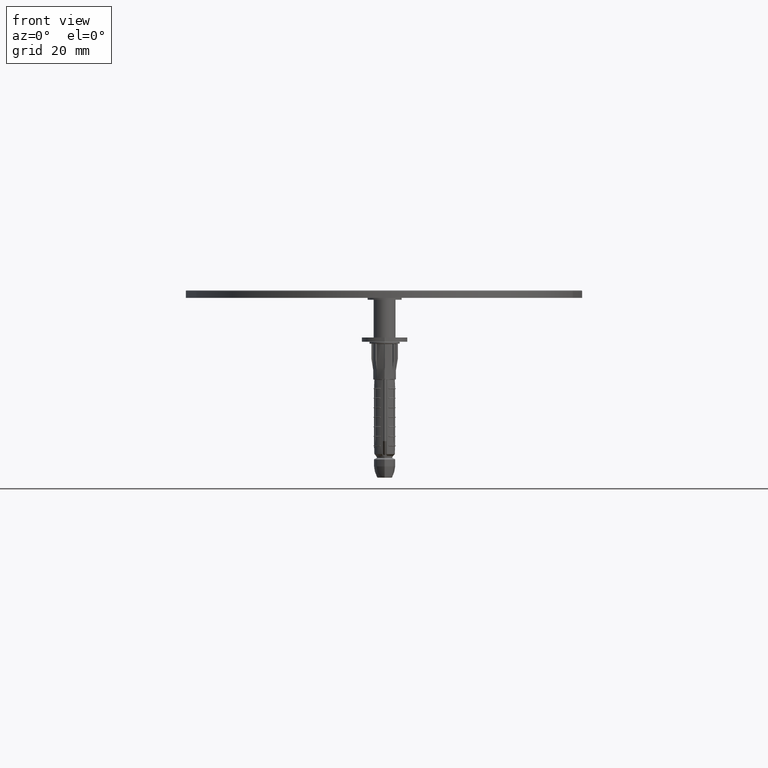
[diagram: clean part render]
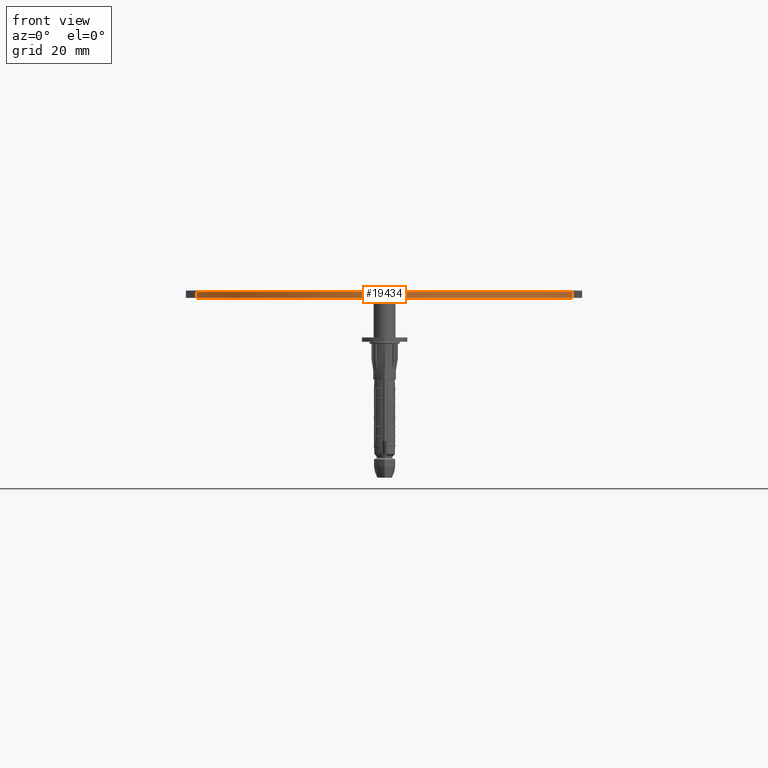
[diagram: same view with one face highlighted and labeled with its STEP entity id]
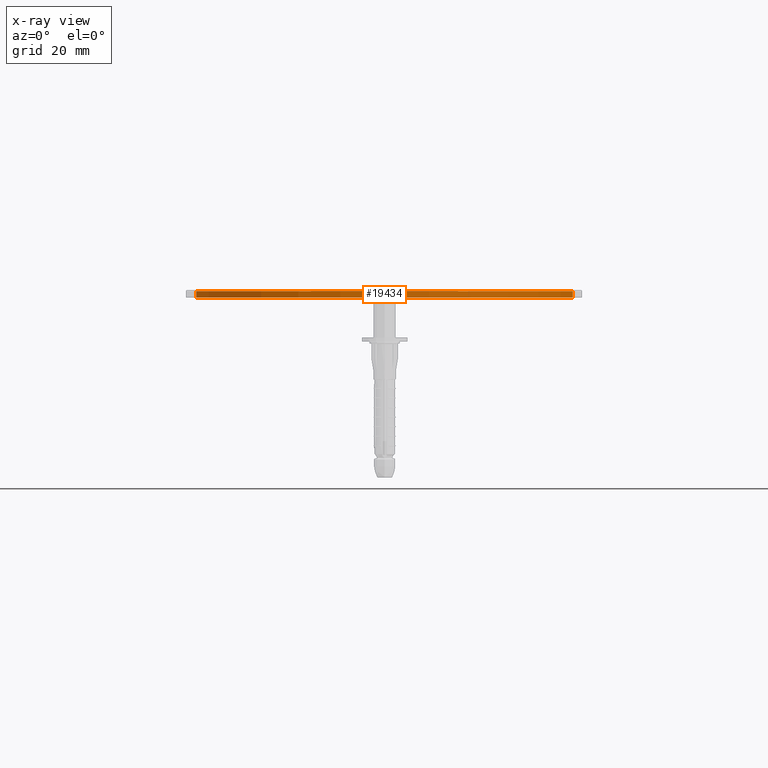
[diagram: x-ray of the same camera — body ghosted, the highlighted face saturated]
A machine part, front view. The second image highlights one B-rep face of the part: STEP entity #19434.
The next image is the same camera in x-ray: the body ghosted, the highlighted face saturated — about 0% of this face is hidden behind the body in this view.
In plain terms, the highlighted cylindrical surface (partial cylindrical patch) has radius 50.45 mm, axis along (-0, -0, -1).
Its self-contained STEP definition (entity closure, byte-faithful):
#492 = CARTESIAN_POINT ( 'NONE',  ( -49.80184873371896970, 42.38908425154004789, 0.000000000000000000 ) ) ;
#1042 = EDGE_CURVE ( 'NONE', #4603, #5539, #36365, .T. ) ;
#1712 = CARTESIAN_POINT ( 'NONE',  ( 49.80184873371896259, 42.38908425154003368, 1.750000000000000000 ) ) ;
#1813 = CYLINDRICAL_SURFACE ( 'NONE', #24695, 50.44999999999995310 ) ;
#2411 = VERTEX_POINT ( 'NONE', #492 ) ;
#2735 = LINE ( 'NONE', #16469, #23085 ) ;
#3567 = DIRECTION ( 'NONE',  ( -0.000000000000000000, -0.000000000000000000, -1.000000000000000000 ) ) ;
#4074 = DIRECTION ( 'NONE',  ( 0.000000000000000000, 0.000000000000000000, 1.000000000000000000 ) ) ;
#4603 = VERTEX_POINT ( 'NONE', #1712 ) ;
#4822 = ORIENTED_EDGE ( 'NONE', *, *, #32113, .T. ) ;
#4894 = CARTESIAN_POINT ( 'NONE',  ( 49.80184873371896259, 42.38908425154003368, 0.000000000000000000 ) ) ;
#5539 = VERTEX_POINT ( 'NONE', #36801 ) ;
#6171 = EDGE_CURVE ( 'NONE', #5539, #2411, #23358, .T. ) ;
#7563 = AXIS2_PLACEMENT_3D ( 'NONE', #18694, #3567, #24732 ) ;
#8250 = VECTOR ( 'NONE', #11596, 1000.000000000000000 ) ;
#9326 = DIRECTION ( 'NONE',  ( -0.000000000000000000, -0.000000000000000000, -1.000000000000000000 ) ) ;
#11596 = DIRECTION ( 'NONE',  ( -0.000000000000000000, -0.000000000000000000, -1.000000000000000000 ) ) ;
#12486 = DIRECTION ( 'NONE',  ( -1.000000000000000000, 0.000000000000000000, 0.000000000000000000 ) ) ;
#13012 = EDGE_CURVE ( 'NONE', #4603, #34583, #2735, .T. ) ;
#13104 = CARTESIAN_POINT ( 'NONE',  ( 0.000000000000000000, 50.45000000000000284, 0.000000000000000000 ) ) ;
#13626 = ORIENTED_EDGE ( 'NONE', *, *, #13012, .F. ) ;
#13982 = AXIS2_PLACEMENT_3D ( 'NONE', #13104, #4074, #34148 ) ;
#16469 = CARTESIAN_POINT ( 'NONE',  ( 49.80184873371896259, 42.38908425154003368, 2.000000000000000000 ) ) ;
#18199 = CARTESIAN_POINT ( 'NONE',  ( 0.000000000000000000, 50.45000000000000284, 2.000000000000000000 ) ) ;
#18694 = CARTESIAN_POINT ( 'NONE',  ( 0.000000000000000000, 50.45000000000000284, 1.750000000000000000 ) ) ;
#19434 = ADVANCED_FACE ( 'NONE', ( #26853 ), #1813, .T. ) ;
#23085 = VECTOR ( 'NONE', #28687, 1000.000000000000000 ) ;
#23358 = LINE ( 'NONE', #32779, #8250 ) ;
#24181 = ORIENTED_EDGE ( 'NONE', *, *, #6171, .T. ) ;
#24695 = AXIS2_PLACEMENT_3D ( 'NONE', #18199, #9326, #12486 ) ;
#24732 = DIRECTION ( 'NONE',  ( -1.000000000000000000, 0.000000000000000000, 0.000000000000000000 ) ) ;
#25705 = CIRCLE ( 'NONE', #13982, 50.44999999999995310 ) ;
#26853 = FACE_OUTER_BOUND ( 'NONE', #35374, .T. ) ;
#28616 = ORIENTED_EDGE ( 'NONE', *, *, #1042, .T. ) ;
#28687 = DIRECTION ( 'NONE',  ( -0.000000000000000000, -0.000000000000000000, -1.000000000000000000 ) ) ;
#32113 = EDGE_CURVE ( 'NONE', #2411, #34583, #25705, .T. ) ;
#32779 = CARTESIAN_POINT ( 'NONE',  ( -49.80184873371896970, 42.38908425154004789, 2.000000000000000000 ) ) ;
#34148 = DIRECTION ( 'NONE',  ( 1.000000000000000000, 0.000000000000000000, 0.000000000000000000 ) ) ;
#34583 = VERTEX_POINT ( 'NONE', #4894 ) ;
#35374 = EDGE_LOOP ( 'NONE', ( #13626, #28616, #24181, #4822 ) ) ;
#36365 = CIRCLE ( 'NONE', #7563, 50.44999999999995310 ) ;
#36801 = CARTESIAN_POINT ( 'NONE',  ( -49.80184873371896970, 42.38908425154004789, 1.750000000000000000 ) ) ;